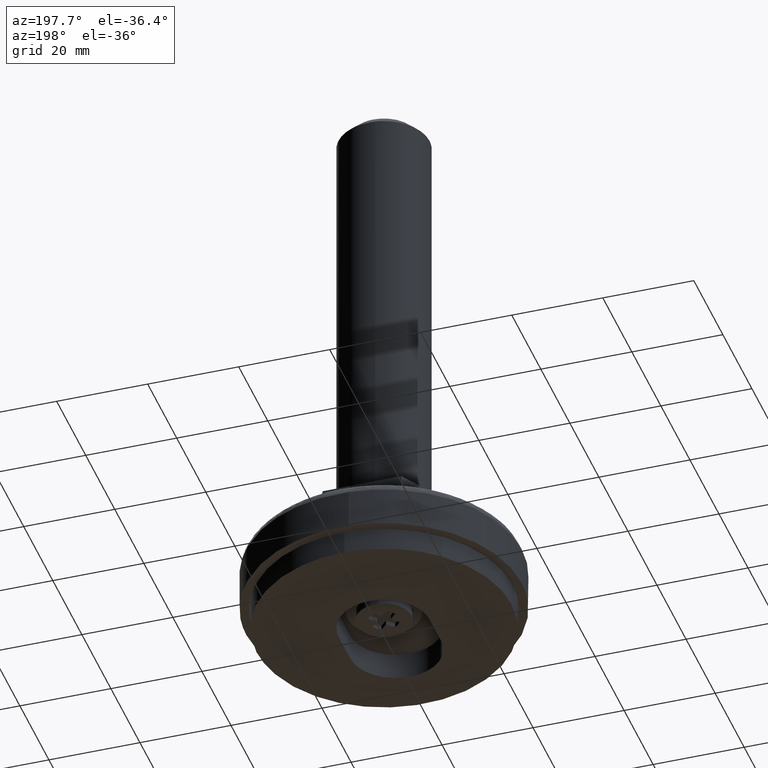
[diagram: clean part render]
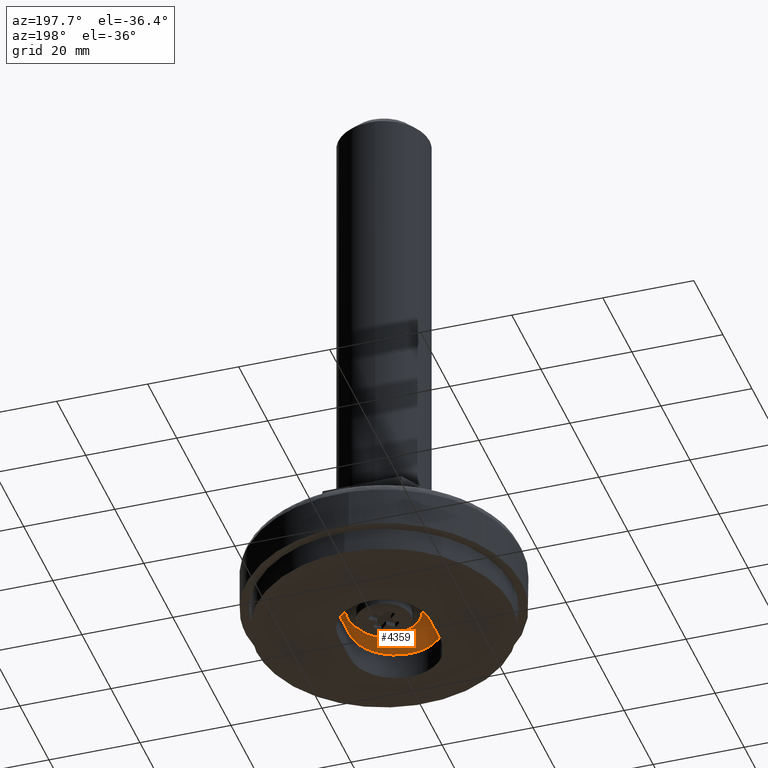
[diagram: same view with one face highlighted and labeled with its STEP entity id]
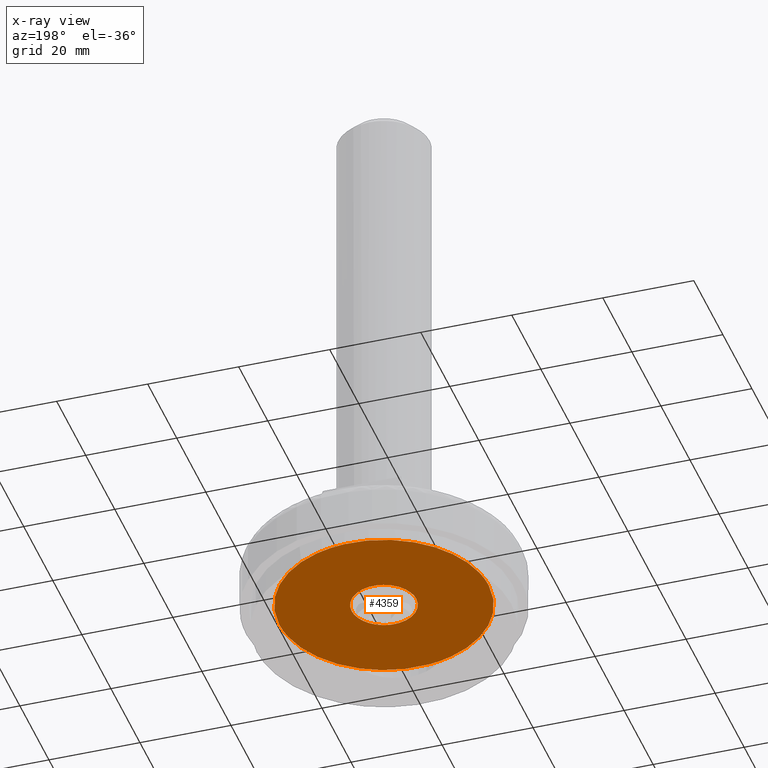
[diagram: x-ray of the same camera — body ghosted, the highlighted face saturated]
A machine part, auxiliary view. The second image highlights one B-rep face of the part: STEP entity #4359.
The next image is the same camera in x-ray: the body ghosted, the highlighted face saturated — about 0% of this face is hidden behind the body in this view.
In plain terms, the highlighted face is a freeform B-spline surface patch.
Its self-contained STEP definition (entity closure, byte-faithful):
#3883=CARTESIAN_POINT('',(-2.714771872162253,-22.839220951728461,6.000000000000121));
#3884=VERTEX_POINT('',#3883);
#3890=CARTESIAN_POINT('',(23.0,0.0,6.000000000000120));
#3891=VERTEX_POINT('',#3890);
#3892=CARTESIAN_POINT('',(-2.714771872162253,-22.839220951728457,6.000000000000121));
#3893=CARTESIAN_POINT('',(-1.362146907459270,-22.999999999999996,6.000000000000119));
#3894=CARTESIAN_POINT('',(0.0,-23.0,6.000000000000120));
#3895=CARTESIAN_POINT('',(22.999999999999993,-22.999999999999993,6.000000000000120));
#3896=CARTESIAN_POINT('',(23.0,0.0,6.000000000000120));
#3904=(BOUNDED_CURVE()B_SPLINE_CURVE(2,(#3892,#3893,#3894,#3895,#3896),.UNSPECIFIED.,.F.,.U.)B_SPLINE_CURVE_WITH_KNOTS((3,2,3),(0.229562588395489,0.250000000000000,0.500000000000000),.UNSPECIFIED.)CURVE()GEOMETRIC_REPRESENTATION_ITEM()RATIONAL_B_SPLINE_CURVE((0.956026979357207,0.976056082923758,1.0,0.707106781186548,1.0))REPRESENTATION_ITEM(''));
#3905=EDGE_CURVE('',#3884,#3891,#3904,.T.);
#3907=CARTESIAN_POINT('',(1.404080725444607,22.957102546165459,6.000000000000119));
#3908=VERTEX_POINT('',#3907);
#3909=CARTESIAN_POINT('',(23.0,0.0,6.000000000000120));
#3910=CARTESIAN_POINT('',(23.000000000000004,21.636273232446747,6.000000000000120));
#3911=CARTESIAN_POINT('',(1.404080725444607,22.957102546165462,6.000000000000119));
#3919=(BOUNDED_CURVE()B_SPLINE_CURVE(2,(#3909,#3910,#3911),.UNSPECIFIED.,.F.,.U.)B_SPLINE_CURVE_WITH_KNOTS((3,3),(0.500000000000000,0.739333230443794),.UNSPECIFIED.)CURVE()GEOMETRIC_REPRESENTATION_ITEM()RATIONAL_B_SPLINE_CURVE((1.0,0.719603679065182,0.976072616481442))REPRESENTATION_ITEM(''));
#3920=EDGE_CURVE('',#3891,#3908,#3919,.T.);
#3994=CARTESIAN_POINT('',(-23.0,0.0,6.000000000000120));
#3995=VERTEX_POINT('',#3994);
#3996=CARTESIAN_POINT('',(1.404080725444607,22.957102546165462,6.000000000000119));
#3997=CARTESIAN_POINT('',(0.702695663914087,22.999999999999993,6.000000000000120));
#3998=CARTESIAN_POINT('',(0.0,23.0,6.000000000000120));
#3999=CARTESIAN_POINT('',(-22.999999999999993,22.999999999999993,6.000000000000120));
#4000=CARTESIAN_POINT('',(-23.0,0.0,6.000000000000120));
#4008=(BOUNDED_CURVE()B_SPLINE_CURVE(2,(#3996,#3997,#3998,#3999,#4000),.UNSPECIFIED.,.F.,.U.)B_SPLINE_CURVE_WITH_KNOTS((3,2,3),(0.739333230443794,0.750000000000000,1.0),.UNSPECIFIED.)CURVE()GEOMETRIC_REPRESENTATION_ITEM()RATIONAL_B_SPLINE_CURVE((0.976072616481442,0.987503102121365,1.0,0.707106781186548,1.0))REPRESENTATION_ITEM(''));
#4009=EDGE_CURVE('',#3908,#3995,#4008,.T.);
#4011=CARTESIAN_POINT('',(-23.0,0.0,6.000000000000120));
#4012=CARTESIAN_POINT('',(-22.999999999999996,-20.428028080565376,6.000000000000120));
#4013=CARTESIAN_POINT('',(-2.714771872162253,-22.839220951728457,6.000000000000121));
#4021=(BOUNDED_CURVE()B_SPLINE_CURVE(2,(#4011,#4012,#4013),.UNSPECIFIED.,.F.,.U.)B_SPLINE_CURVE_WITH_KNOTS((3,3),(0.0,0.229562588395489),.UNSPECIFIED.)CURVE()GEOMETRIC_REPRESENTATION_ITEM()RATIONAL_B_SPLINE_CURVE((1.0,0.731050698262790,0.956026979357207))REPRESENTATION_ITEM(''));
#4022=EDGE_CURVE('',#3995,#3884,#4021,.T.);
#4064=CARTESIAN_POINT('',(2.508443960231968,-6.642116285247610,6.000000000000771));
#4065=VERTEX_POINT('',#4064);
#4079=CARTESIAN_POINT('',(-7.100000000000001,0.0,6.000000000000091));
#4080=VERTEX_POINT('',#4079);
#4081=CARTESIAN_POINT('',(-7.100000000000001,0.0,6.000000000000091));
#4082=CARTESIAN_POINT('',(-7.100000000000001,-7.100000000000001,6.000000000000092));
#4083=CARTESIAN_POINT('',(0.0,-7.100000000000001,6.000000000000091));
#4084=CARTESIAN_POINT('',(1.296012329342020,-7.100000000000000,6.000000000000092));
#4085=CARTESIAN_POINT('',(2.508443960231968,-6.642116285247610,6.000000000000771));
#4093=(BOUNDED_CURVE()B_SPLINE_CURVE(2,(#4081,#4082,#4083,#4084,#4085),.UNSPECIFIED.,.F.,.U.)B_SPLINE_CURVE_WITH_KNOTS((3,2,3),(0.0,0.250000000000000,0.310000000034122),.UNSPECIFIED.)CURVE()GEOMETRIC_REPRESENTATION_ITEM()RATIONAL_B_SPLINE_CURVE((1.0,0.707106781186547,1.0,0.929705627444795,0.893152553735277))REPRESENTATION_ITEM(''));
#4094=EDGE_CURVE('',#4080,#4065,#4093,.T.);
#4096=CARTESIAN_POINT('',(7.099999999356633,1.875043E-016,6.000000000000431));
#4097=VERTEX_POINT('',#4096);
#4098=CARTESIAN_POINT('',(7.099999999356633,1.875043E-016,6.000000000000431));
#4099=CARTESIAN_POINT('',(7.100000000000001,7.100000000000001,6.000000000000092));
#4100=CARTESIAN_POINT('',(0.0,7.100000000000001,6.000000000000091));
#4101=CARTESIAN_POINT('',(-7.100000000000001,7.100000000000001,6.000000000000092));
#4102=CARTESIAN_POINT('',(-7.100000000000001,0.0,6.000000000000091));
#4110=(BOUNDED_CURVE()B_SPLINE_CURVE(2,(#4098,#4099,#4100,#4101,#4102),.UNSPECIFIED.,.F.,.U.)B_SPLINE_CURVE_WITH_KNOTS((3,2,3),(0.500000000000000,0.750000000000000,1.0),.UNSPECIFIED.)CURVE()GEOMETRIC_REPRESENTATION_ITEM()RATIONAL_B_SPLINE_CURVE((1.0,0.707106781186547,1.0,0.707106781186547,1.0))REPRESENTATION_ITEM(''));
#4111=EDGE_CURVE('',#4097,#4080,#4110,.T.);
#4151=CARTESIAN_POINT('',(2.508443960231968,-6.642116285247610,6.000000000000771));
#4152=CARTESIAN_POINT('',(7.100000000000001,-4.908081461202555,6.000000000000093));
#4153=CARTESIAN_POINT('',(7.099999999356633,1.875043E-016,6.000000000000431));
#4161=(BOUNDED_CURVE()B_SPLINE_CURVE(2,(#4151,#4152,#4153),.UNSPECIFIED.,.F.,.U.)B_SPLINE_CURVE_WITH_KNOTS((3,3),(0.310000000034122,0.500000000000000),.UNSPECIFIED.)CURVE()GEOMETRIC_REPRESENTATION_ITEM()RATIONAL_B_SPLINE_CURVE((0.893152553735277,0.777401153741753,1.0))REPRESENTATION_ITEM(''));
#4162=EDGE_CURVE('',#4065,#4097,#4161,.T.);
#4343=CARTESIAN_POINT('',(-25.297699910843079,25.297140543101609,6.000000000000091));
#4344=CARTESIAN_POINT('',(25.297701144659221,25.297140543101609,6.000000000000091));
#4345=CARTESIAN_POINT('',(-25.297699910843079,-25.297281609414402,6.000000000000091));
#4346=CARTESIAN_POINT('',(25.297701144659221,-25.297281609414402,6.000000000000091));
#4347=B_SPLINE_SURFACE_WITH_KNOTS('',1,1,((#4343,#4345),(#4344,#4346)),.UNSPECIFIED.,.F.,.F.,.U.,(2,2),(2,2),(0.0,50.595401055502293),(0.0,50.594422152516017),.UNSPECIFIED.);
#4348=ORIENTED_EDGE('',*,*,#4009,.F.);
#4349=ORIENTED_EDGE('',*,*,#3920,.F.);
#4350=ORIENTED_EDGE('',*,*,#3905,.F.);
#4351=ORIENTED_EDGE('',*,*,#4022,.F.);
#4352=EDGE_LOOP('',(#4348,#4349,#4350,#4351));
#4353=FACE_OUTER_BOUND('',#4352,.T.);
#4354=ORIENTED_EDGE('',*,*,#4111,.T.);
#4355=ORIENTED_EDGE('',*,*,#4094,.T.);
#4356=ORIENTED_EDGE('',*,*,#4162,.T.);
#4357=EDGE_LOOP('',(#4354,#4355,#4356));
#4358=FACE_BOUND('',#4357,.T.);
#4359=ADVANCED_FACE('',(#4353,#4358),#4347,.T.);